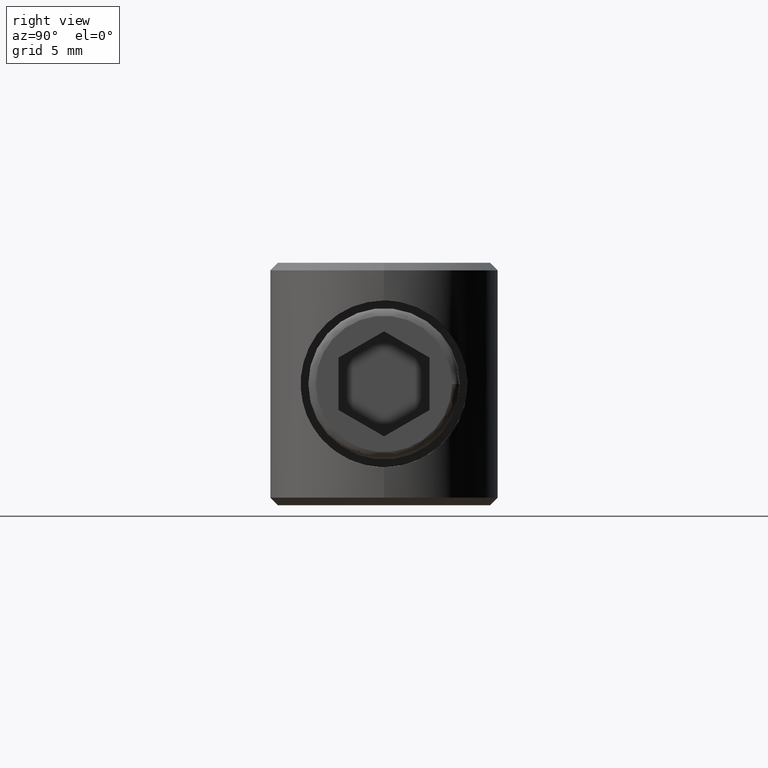
[diagram: clean part render]
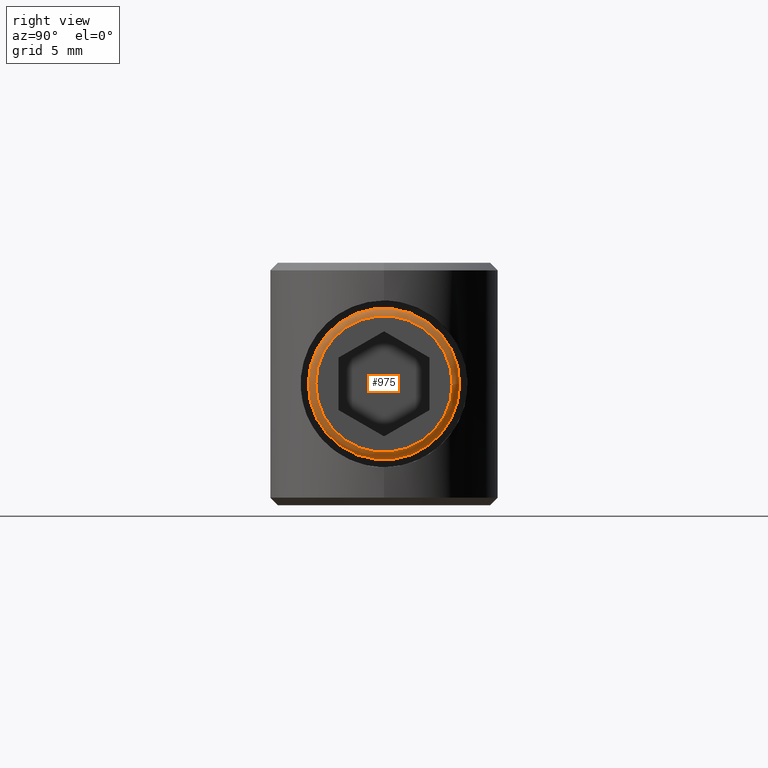
[diagram: same view with one face highlighted and labeled with its STEP entity id]
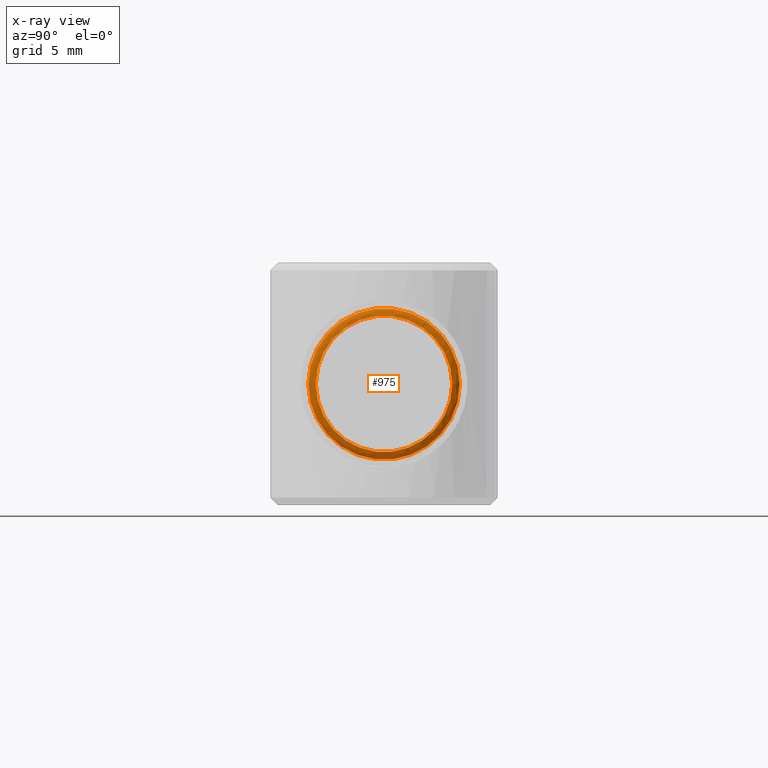
[diagram: x-ray of the same camera — body ghosted, the highlighted face saturated]
A machine part, right view. The second image highlights one B-rep face of the part: STEP entity #975.
The next image is the same camera in x-ray: the body ghosted, the highlighted face saturated — about 0% of this face is hidden behind the body in this view.
In plain terms, the highlighted face is a freeform B-spline surface patch.
Its self-contained STEP definition (entity closure, byte-faithful):
#839=CARTESIAN_POINT('',(5.499999999978172,4.499999999982265,7.999999999968168));
#840=VERTEX_POINT('',#839);
#841=CARTESIAN_POINT('',(5.499999999978172,-4.499999999981355,7.999999999968168));
#842=VERTEX_POINT('',#841);
#843=CARTESIAN_POINT('',(5.499999999978172,4.547474E-013,7.999999999968168));
#844=DIRECTION('',(1.0,0.0,0.0));
#845=DIRECTION('',(0.0,1.0,0.0));
#846=AXIS2_PLACEMENT_3D('',#843,#844,#845);
#847=CIRCLE('',#846,4.499999999981810);
#848=EDGE_CURVE('',#840,#842,#847,.T.);
#850=CARTESIAN_POINT('',(5.499999999978172,4.547474E-013,7.999999999968168));
#851=DIRECTION('',(1.0,0.0,0.0));
#852=DIRECTION('',(0.0,1.0,0.0));
#853=AXIS2_PLACEMENT_3D('',#850,#851,#852);
#854=CIRCLE('',#853,4.499999999981810);
#855=EDGE_CURVE('',#842,#840,#854,.T.);
#910=CARTESIAN_POINT('',(5.499999999978172,4.499999999982265,7.999999999968168));
#911=CARTESIAN_POINT('',(5.499999999978172,4.499999999982265,12.499999999949978));
#912=CARTESIAN_POINT('',(5.499999999978172,4.547474E-013,12.499999999949978));
#913=CARTESIAN_POINT('',(5.499999999978172,-4.499999999981355,12.499999999949978));
#914=CARTESIAN_POINT('',(5.499999999978172,-4.499999999981355,7.999999999968168));
#915=CARTESIAN_POINT('',(5.499999999978172,-4.499999999981355,3.499999999986358));
#916=CARTESIAN_POINT('',(5.499999999978172,4.547474E-013,3.499999999986358));
#917=CARTESIAN_POINT('',(5.499999999978172,4.499999999982265,3.499999999986358));
#918=CARTESIAN_POINT('',(5.499999999978172,4.499999999982265,7.999999999968168));
#919=CARTESIAN_POINT('',(5.499999999978172,4.999999999980446,7.999999999968168));
#920=CARTESIAN_POINT('',(5.499999999978172,4.999999999980446,12.999999999948159));
#921=CARTESIAN_POINT('',(5.499999999978172,4.547474E-013,12.999999999948157));
#922=CARTESIAN_POINT('',(5.499999999978172,-4.999999999979536,12.999999999948159));
#923=CARTESIAN_POINT('',(5.499999999978172,-4.999999999979536,7.999999999968168));
#924=CARTESIAN_POINT('',(5.499999999978172,-4.999999999979536,2.999999999988177));
#925=CARTESIAN_POINT('',(5.499999999978172,4.547474E-013,2.999999999988177));
#926=CARTESIAN_POINT('',(5.499999999978172,4.999999999980446,2.999999999988177));
#927=CARTESIAN_POINT('',(5.499999999978172,4.999999999980446,7.999999999968168));
#928=CARTESIAN_POINT('',(4.999999999979991,4.999999999980446,7.999999999968168));
#929=CARTESIAN_POINT('',(4.999999999979991,4.999999999980446,12.999999999948157));
#930=CARTESIAN_POINT('',(4.999999999979991,4.547474E-013,12.999999999948159));
#931=CARTESIAN_POINT('',(4.999999999979991,-4.999999999979536,12.999999999948157));
#932=CARTESIAN_POINT('',(4.999999999979991,-4.999999999979536,7.999999999968168));
#933=CARTESIAN_POINT('',(4.999999999979991,-4.999999999979536,2.999999999988177));
#934=CARTESIAN_POINT('',(4.999999999979991,4.547474E-013,2.999999999988177));
#935=CARTESIAN_POINT('',(4.999999999979991,4.999999999980446,2.999999999988177));
#936=CARTESIAN_POINT('',(4.999999999979991,4.999999999980446,7.999999999968168));
#944=(BOUNDED_SURFACE()B_SPLINE_SURFACE(2,2,((#910,#919,#928),(#911,#920,#929),(#912,#921,#930),(#913,#922,#931),(#914,#923,#932),(#915,#924,#933),(#916,#925,#934),(#917,#926,#935),(#918,#927,#936)),.UNSPECIFIED.,.T.,.F.,.U.)B_SPLINE_SURFACE_WITH_KNOTS((3,2,2,2,3),(3,3),(0.0,0.250000000000000,0.500000000000000,0.750000000000000,1.0),(0.0,1.0),.UNSPECIFIED.)GEOMETRIC_REPRESENTATION_ITEM()RATIONAL_B_SPLINE_SURFACE(((1.0,0.707106781186548,1.0),(0.707106781186548,0.500000000000000,0.707106781186548),(1.0,0.707106781186548,1.0),(0.707106781186548,0.500000000000000,0.707106781186548),(1.0,0.707106781186548,1.0),(0.707106781186548,0.500000000000000,0.707106781186548),(1.0,0.707106781186548,1.0),(0.707106781186548,0.500000000000000,0.707106781186548),(1.0,0.707106781186548,1.0)))REPRESENTATION_ITEM('')SURFACE());
#945=CARTESIAN_POINT('',(4.999999999979991,4.999999999980446,7.999999999968168));
#946=VERTEX_POINT('',#945);
#947=CARTESIAN_POINT('',(4.999999999979991,4.499999999982265,7.999999999968168));
#948=DIRECTION('',(0.0,0.0,1.0));
#949=DIRECTION('',(1.0,0.0,0.0));
#950=AXIS2_PLACEMENT_3D('',#947,#948,#949);
#951=CIRCLE('',#950,0.499999999998181);
#952=EDGE_CURVE('',#840,#946,#951,.T.);
#953=ORIENTED_EDGE('',*,*,#952,.T.);
#954=CARTESIAN_POINT('',(4.999999999979991,-4.999999999979536,7.999999999968168));
#955=VERTEX_POINT('',#954);
#956=CARTESIAN_POINT('',(4.999999999979991,4.547474E-013,7.999999999968168));
#957=DIRECTION('',(1.0,0.0,0.0));
#958=DIRECTION('',(0.0,1.0,0.0));
#959=AXIS2_PLACEMENT_3D('',#956,#957,#958);
#960=CIRCLE('',#959,4.999999999979991);
#961=EDGE_CURVE('',#946,#955,#960,.T.);
#962=ORIENTED_EDGE('',*,*,#961,.T.);
#963=CARTESIAN_POINT('',(4.999999999979991,4.547474E-013,7.999999999968168));
#964=DIRECTION('',(1.0,0.0,0.0));
#965=DIRECTION('',(0.0,1.0,0.0));
#966=AXIS2_PLACEMENT_3D('',#963,#964,#965);
#967=CIRCLE('',#966,4.999999999979991);
#968=EDGE_CURVE('',#955,#946,#967,.T.);
#969=ORIENTED_EDGE('',*,*,#968,.T.);
#970=ORIENTED_EDGE('',*,*,#952,.F.);
#971=ORIENTED_EDGE('',*,*,#855,.F.);
#972=ORIENTED_EDGE('',*,*,#848,.F.);
#973=EDGE_LOOP('',(#953,#962,#969,#970,#971,#972));
#974=FACE_OUTER_BOUND('',#973,.T.);
#975=ADVANCED_FACE('',(#974),#944,.F.);